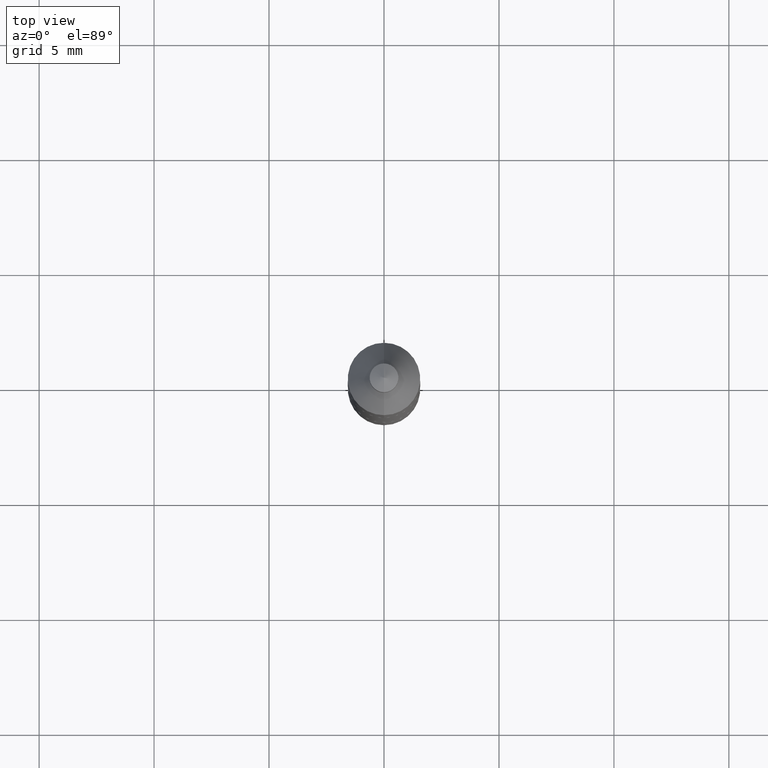
[diagram: clean part render]
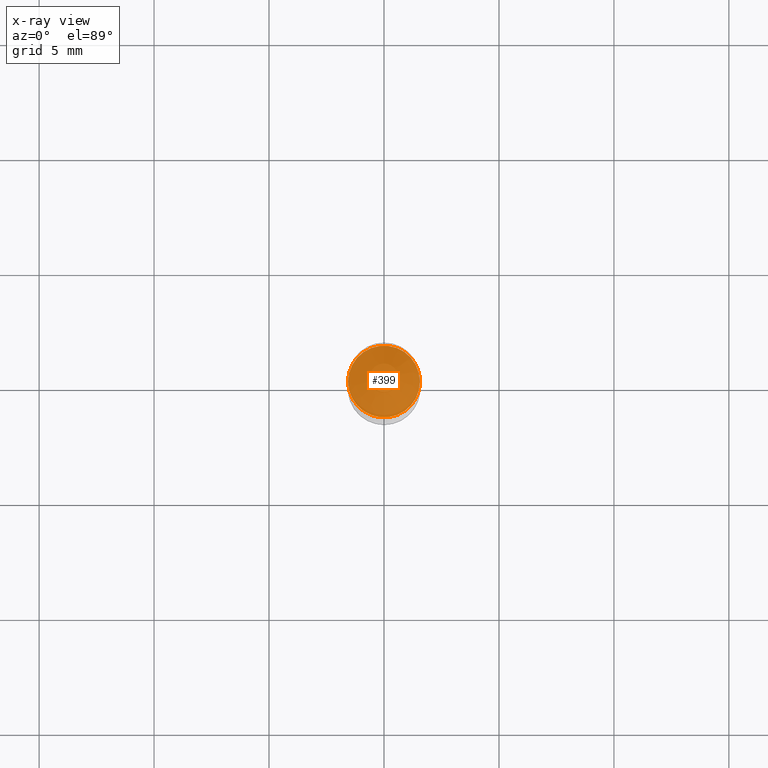
[diagram: x-ray — body ghosted, one internal face saturated and labeled with its STEP entity id]
A machine part, top view, then the same camera in x-ray: the body is ghosted and one INTERNAL B-rep face — a face not visible from any outside direction — is saturated and labeled: STEP entity #399.
In plain terms, the highlighted planar face has unit normal (-0, 0, 1).
Its self-contained STEP definition (entity closure, byte-faithful):
#41 = FACE_OUTER_BOUND ( 'NONE', #440, .T. ) ;
#56 = VERTEX_POINT ( 'NONE', #285 ) ;
#107 = VERTEX_POINT ( 'NONE', #175 ) ;
#175 = CARTESIAN_POINT ( 'NONE',  ( -0.06150000000000001993, 1.225803588961604704E-15, 0.2299999999999999267 ) ) ;
#184 = ORIENTED_EDGE ( 'NONE', *, *, #326, .T. ) ;
#190 = AXIS2_PLACEMENT_3D ( 'NONE', #261, #649, #425 ) ;
#201 = CARTESIAN_POINT ( 'NONE',  ( -5.624578254225812687E-30, 8.030407079339232947E-16, 0.2299999999999999267 ) ) ;
#202 = CARTESIAN_POINT ( 'NONE',  ( -5.624578254225812687E-30, 8.030407079339232947E-16, 0.2299999999999999267 ) ) ;
#245 = AXIS2_PLACEMENT_3D ( 'NONE', #202, #680, #415 ) ;
#261 = CARTESIAN_POINT ( 'NONE',  ( -5.624578254225812687E-30, 8.030407079339232947E-16, 0.2299999999999999267 ) ) ;
#268 = PLANE ( 'NONE',  #190 ) ;
#285 = CARTESIAN_POINT ( 'NONE',  ( 0.06150000000000001993, 3.735885032562177875E-16, 0.2299999999999999267 ) ) ;
#326 = EDGE_CURVE ( 'NONE', #107, #56, #360, .T. ) ;
#360 = CIRCLE ( 'NONE', #245, 0.06150000000000001993 ) ;
#399 = ADVANCED_FACE ( 'NONE', ( #41 ), #268, .T. ) ;
#415 = DIRECTION ( 'NONE',  ( 1.000000000000000000, -6.982962677686265922E-15, 0.000000000000000000 ) ) ;
#425 = DIRECTION ( 'NONE',  ( -1.000000000000000000, 6.982962677686265922E-15, -4.876176775795935793E-29 ) ) ;
#440 = EDGE_LOOP ( 'NONE', ( #559, #184 ) ) ;
#559 = ORIENTED_EDGE ( 'NONE', *, *, #694, .T. ) ;
#611 = AXIS2_PLACEMENT_3D ( 'NONE', #201, #616, #676 ) ;
#616 = DIRECTION ( 'NONE',  ( -2.445468806185136597E-29, 3.491481338843145583E-15, 1.000000000000000000 ) ) ;
#649 = DIRECTION ( 'NONE',  ( -2.438088387897960049E-29, 3.491481338843145188E-15, 1.000000000000000000 ) ) ;
#676 = DIRECTION ( 'NONE',  ( 1.000000000000000000, -6.982962677686265922E-15, 0.000000000000000000 ) ) ;
#679 = CIRCLE ( 'NONE', #611, 0.06150000000000001993 ) ;
#680 = DIRECTION ( 'NONE',  ( -2.445468806185136597E-29, 3.491481338843145583E-15, 1.000000000000000000 ) ) ;
#694 = EDGE_CURVE ( 'NONE', #56, #107, #679, .T. ) ;